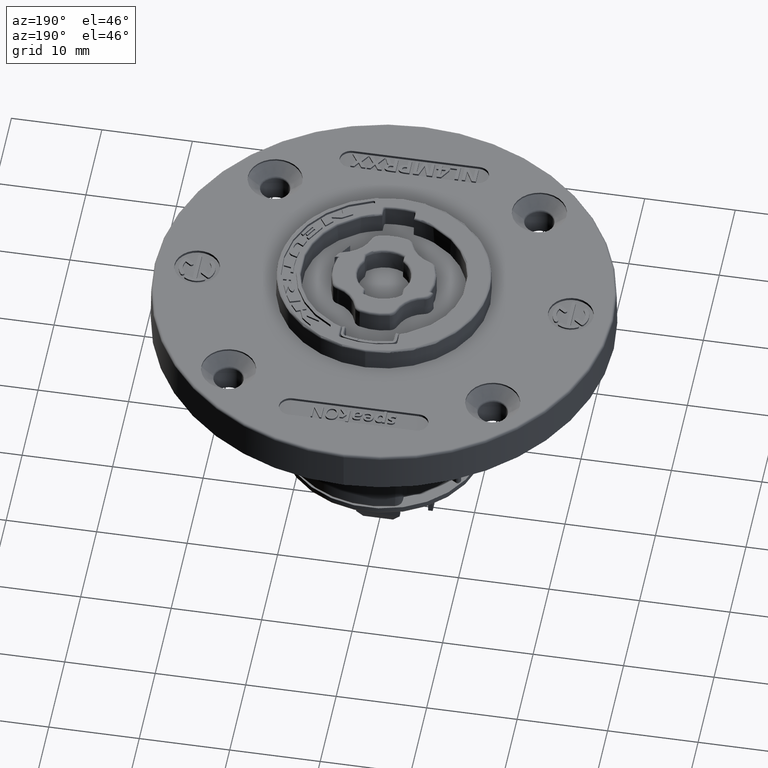
[diagram: clean part render]
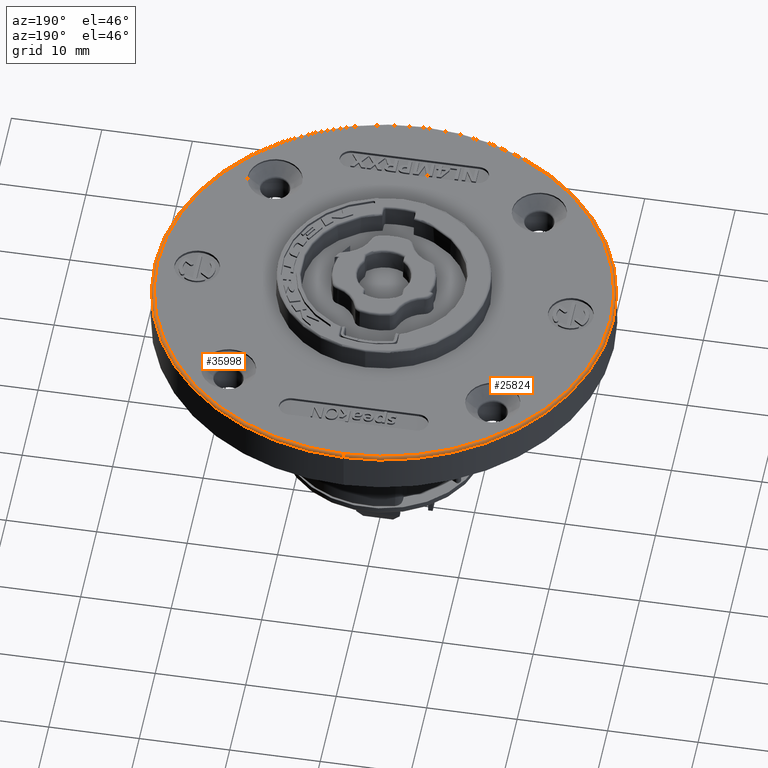
[diagram: same view with one multi-face feature highlighted, each face labeled with its STEP entity id]
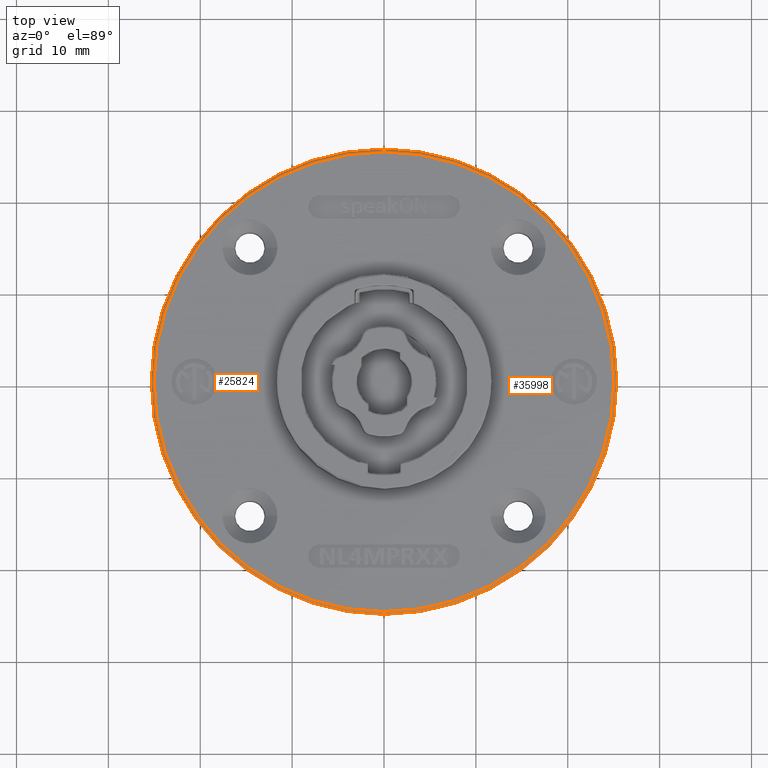
[diagram: same view with one multi-face feature highlighted, each face labeled with its STEP entity id]
A machine part, auxiliary view. The highlighted faces form ONE feature: a constant-radius fillet chain: 2 tangent blend faces with common blend radius 0.3 mm. The faces share edges in the B-rep.
A second angle (top view) of the same feature is appended — it is thin or edge-on in the first view.
Their STEP definitions:
[1] entity #25824 (Torus):
#2160=CARTESIAN_POINT('',(0.E0,0.E0,4.205235721934E0));
#2161=DIRECTION('',(0.E0,0.E0,1.E0));
#2162=DIRECTION('',(0.E0,1.E0,0.E0));
#2163=AXIS2_PLACEMENT_3D('',#2160,#2161,#2162);
#2178=CARTESIAN_POINT('',(0.E0,2.502664302889E1,4.2E0));
#2179=DIRECTION('',(-1.E0,0.E0,0.E0));
#2180=DIRECTION('',(0.E0,1.184237892934E-14,1.E0));
#2181=AXIS2_PLACEMENT_3D('',#2178,#2179,#2180);
#2284=CARTESIAN_POINT('',(0.E0,0.E0,4.5E0));
#2285=DIRECTION('',(0.E0,0.E0,1.E0));
#2286=DIRECTION('',(0.E0,1.E0,0.E0));
#2287=AXIS2_PLACEMENT_3D('',#2284,#2285,#2286);
#9491=CARTESIAN_POINT('',(-1.388819614867E-14,-2.502664302889E1,4.2E0));
#9492=DIRECTION('',(1.E0,0.E0,0.E0));
#9493=DIRECTION('',(0.E0,-2.368475785867E-14,1.E0));
#9494=AXIS2_PLACEMENT_3D('',#9491,#9492,#9493);
#23110=CARTESIAN_POINT('',(0.E0,-2.502664302889E1,4.5E0));
#23111=CARTESIAN_POINT('',(0.E0,2.502664302889E1,4.5E0));
#23112=VERTEX_POINT('',#23110);
#23113=VERTEX_POINT('',#23111);
#23114=CARTESIAN_POINT('',(0.E0,-2.532659733744E1,4.205235721934E0));
#23115=CARTESIAN_POINT('',(0.E0,2.532659733744E1,4.205235721934E0));
#23116=VERTEX_POINT('',#23114);
#23117=VERTEX_POINT('',#23115);
#25810=CARTESIAN_POINT('',(0.E0,0.E0,4.2E0));
#25811=DIRECTION('',(0.E0,0.E0,-1.E0));
#25812=DIRECTION('',(6.562705976684E-4,9.999997846544E-1,0.E0));
#25813=AXIS2_PLACEMENT_3D('',#25810,#25811,#25812);
#25814=TOROIDAL_SURFACE('',#25813,2.502664302889E1,3.E-1);
#25816=ORIENTED_EDGE('',*,*,#25815,.T.);
#25818=ORIENTED_EDGE('',*,*,#25817,.T.);
#25819=ORIENTED_EDGE('',*,*,#25800,.F.);
#25821=ORIENTED_EDGE('',*,*,#25820,.F.);
#25822=EDGE_LOOP('',(#25816,#25818,#25819,#25821));
#25823=FACE_OUTER_BOUND('',#25822,.F.);
#25824=ADVANCED_FACE('',(#25823),#25814,.T.);
#2164=CIRCLE('',#2163,2.532659733744E1);
#2182=CIRCLE('',#2181,3.E-1);
#2288=CIRCLE('',#2287,2.502664302889E1);
#9495=CIRCLE('',#9494,3.E-1);
#25800=EDGE_CURVE('',#23117,#23116,#2164,.T.);
#25815=EDGE_CURVE('',#23113,#23112,#2288,.T.);
#25817=EDGE_CURVE('',#23112,#23116,#9495,.T.);
#25820=EDGE_CURVE('',#23113,#23117,#2182,.T.);
[2] entity #35998 (Torus):
#2178=CARTESIAN_POINT('',(0.E0,2.502664302889E1,4.2E0));
#2179=DIRECTION('',(-1.E0,0.E0,0.E0));
#2180=DIRECTION('',(0.E0,1.184237892934E-14,1.E0));
#2181=AXIS2_PLACEMENT_3D('',#2178,#2179,#2180);
#2279=CARTESIAN_POINT('',(0.E0,0.E0,4.5E0));
#2280=DIRECTION('',(0.E0,0.E0,1.E0));
#2281=DIRECTION('',(0.E0,-1.E0,0.E0));
#2282=AXIS2_PLACEMENT_3D('',#2279,#2280,#2281);
#9491=CARTESIAN_POINT('',(-1.388819614867E-14,-2.502664302889E1,4.2E0));
#9492=DIRECTION('',(1.E0,0.E0,0.E0));
#9493=DIRECTION('',(0.E0,-2.368475785867E-14,1.E0));
#9494=AXIS2_PLACEMENT_3D('',#9491,#9492,#9493);
#9496=CARTESIAN_POINT('',(0.E0,0.E0,4.205235721934E0));
#9497=DIRECTION('',(0.E0,0.E0,1.E0));
#9498=DIRECTION('',(0.E0,-1.E0,0.E0));
#9499=AXIS2_PLACEMENT_3D('',#9496,#9497,#9498);
#23110=CARTESIAN_POINT('',(0.E0,-2.502664302889E1,4.5E0));
#23111=CARTESIAN_POINT('',(0.E0,2.502664302889E1,4.5E0));
#23112=VERTEX_POINT('',#23110);
#23113=VERTEX_POINT('',#23111);
#23114=CARTESIAN_POINT('',(0.E0,-2.532659733744E1,4.205235721934E0));
#23115=CARTESIAN_POINT('',(0.E0,2.532659733744E1,4.205235721934E0));
#23116=VERTEX_POINT('',#23114);
#23117=VERTEX_POINT('',#23115);
#35986=CARTESIAN_POINT('',(0.E0,0.E0,4.2E0));
#35987=DIRECTION('',(0.E0,0.E0,-1.E0));
#35988=DIRECTION('',(-6.562705976684E-4,-9.999997846544E-1,0.E0));
#35989=AXIS2_PLACEMENT_3D('',#35986,#35987,#35988);
#35990=TOROIDAL_SURFACE('',#35989,2.502664302889E1,3.E-1);
#35991=ORIENTED_EDGE('',*,*,#25830,.T.);
#35992=ORIENTED_EDGE('',*,*,#25820,.T.);
#35994=ORIENTED_EDGE('',*,*,#35993,.F.);
#35995=ORIENTED_EDGE('',*,*,#25817,.F.);
#35996=EDGE_LOOP('',(#35991,#35992,#35994,#35995));
#35997=FACE_OUTER_BOUND('',#35996,.F.);
#35998=ADVANCED_FACE('',(#35997),#35990,.T.);
#2182=CIRCLE('',#2181,3.E-1);
#2283=CIRCLE('',#2282,2.502664302889E1);
#9495=CIRCLE('',#9494,3.E-1);
#9500=CIRCLE('',#9499,2.532659733744E1);
#25817=EDGE_CURVE('',#23112,#23116,#9495,.T.);
#25820=EDGE_CURVE('',#23113,#23117,#2182,.T.);
#25830=EDGE_CURVE('',#23112,#23113,#2283,.T.);
#35993=EDGE_CURVE('',#23116,#23117,#9500,.T.);